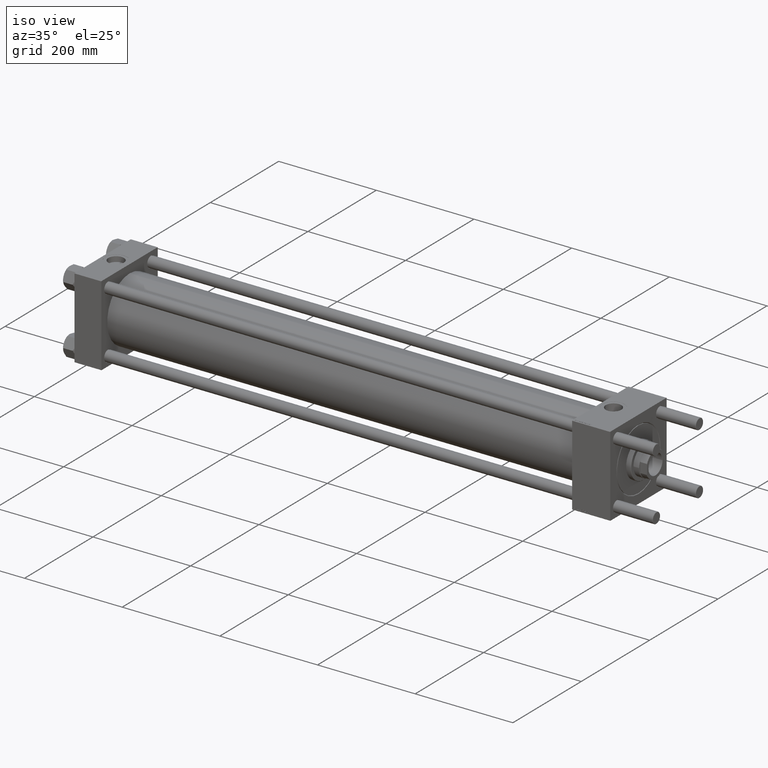
[diagram: clean part render]
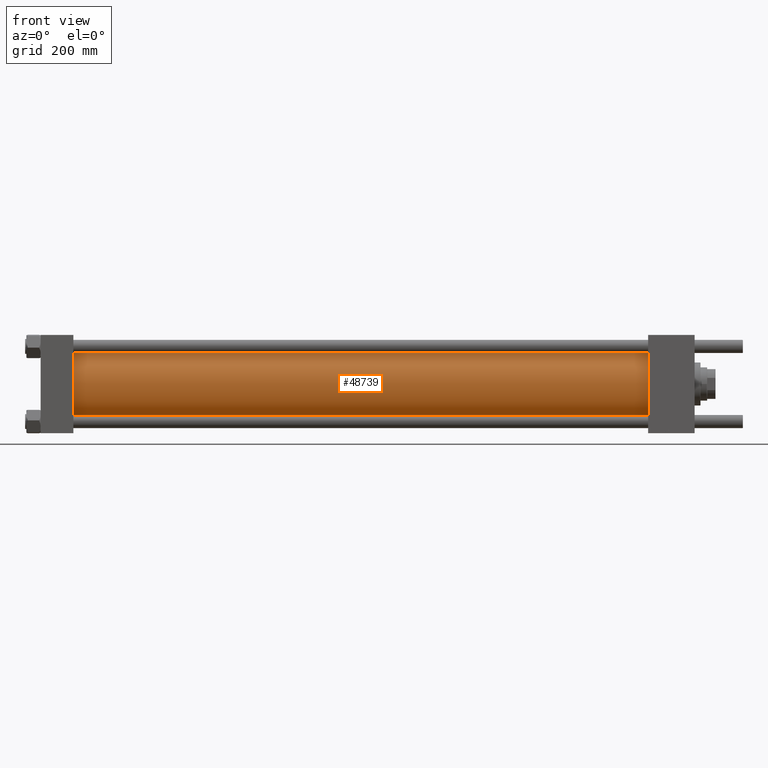
[diagram: tour spotlight — one face highlighted and labeled with its STEP entity id]
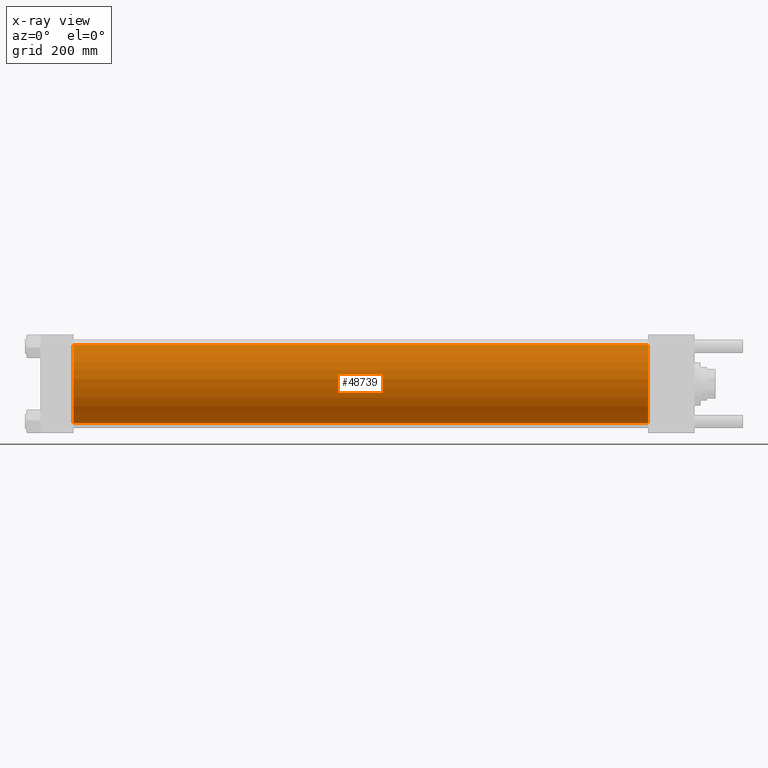
[diagram: x-ray of the same camera — body ghosted, this tour face saturated]
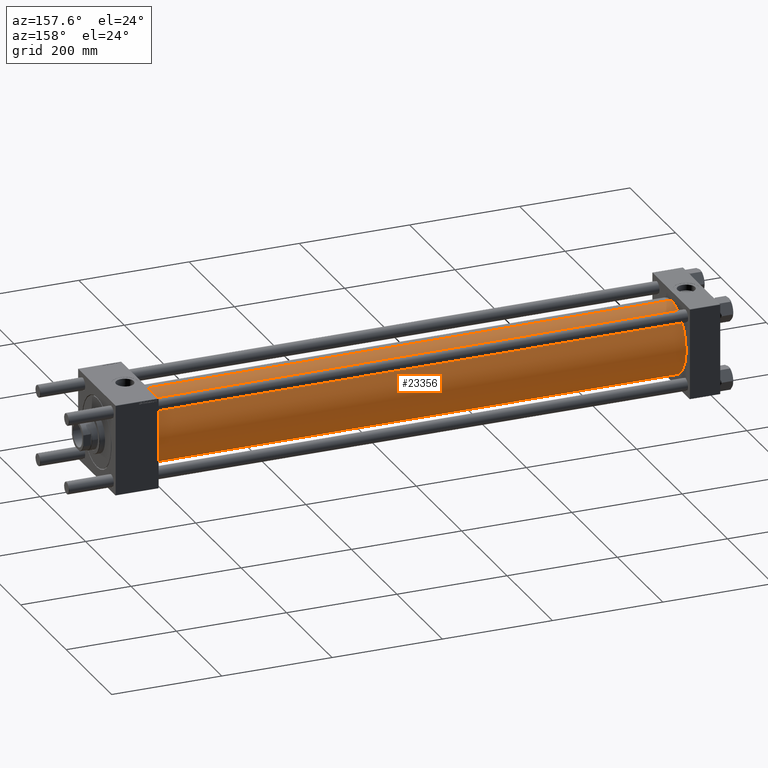
[diagram: tour spotlight — one face highlighted and labeled with its STEP entity id]
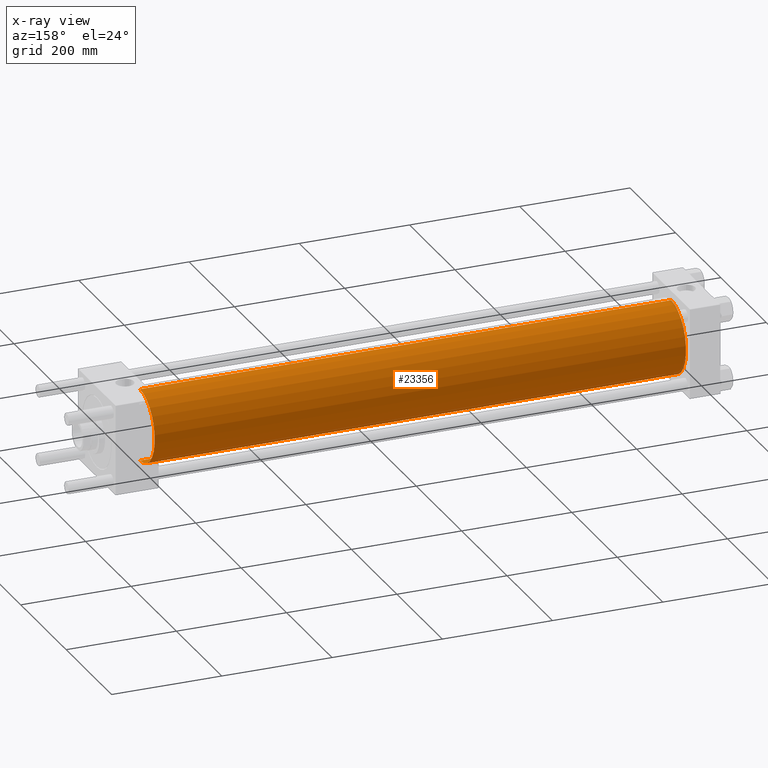
[diagram: x-ray of the same camera — body ghosted, this tour face saturated]
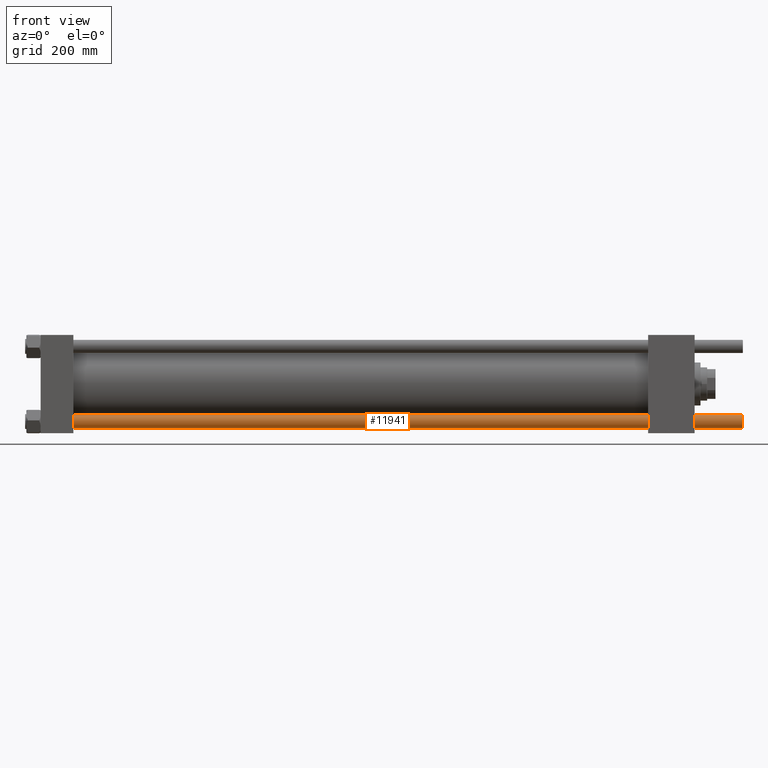
[diagram: tour spotlight — one face highlighted and labeled with its STEP entity id]
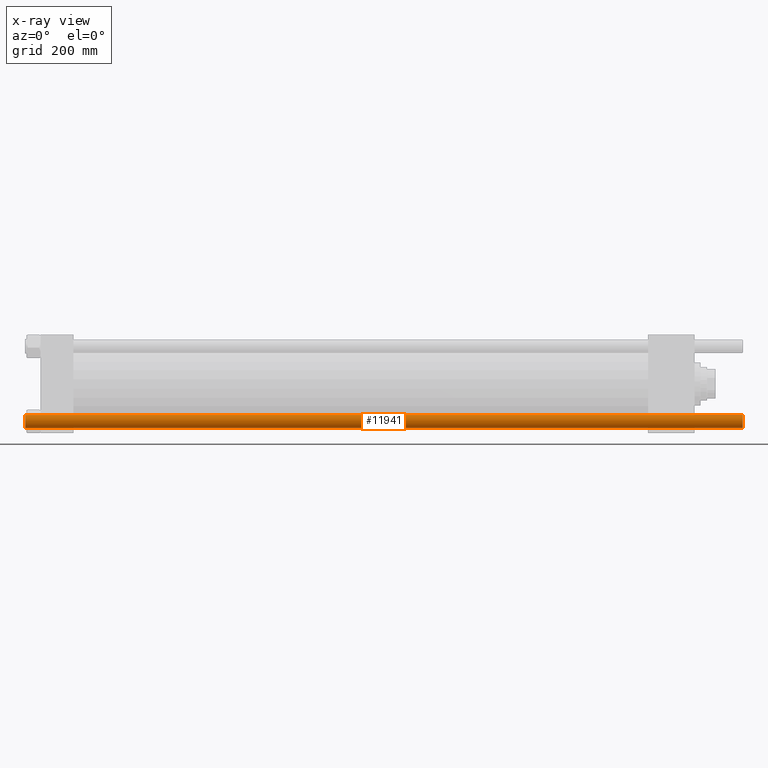
[diagram: x-ray of the same camera — body ghosted, this tour face saturated]
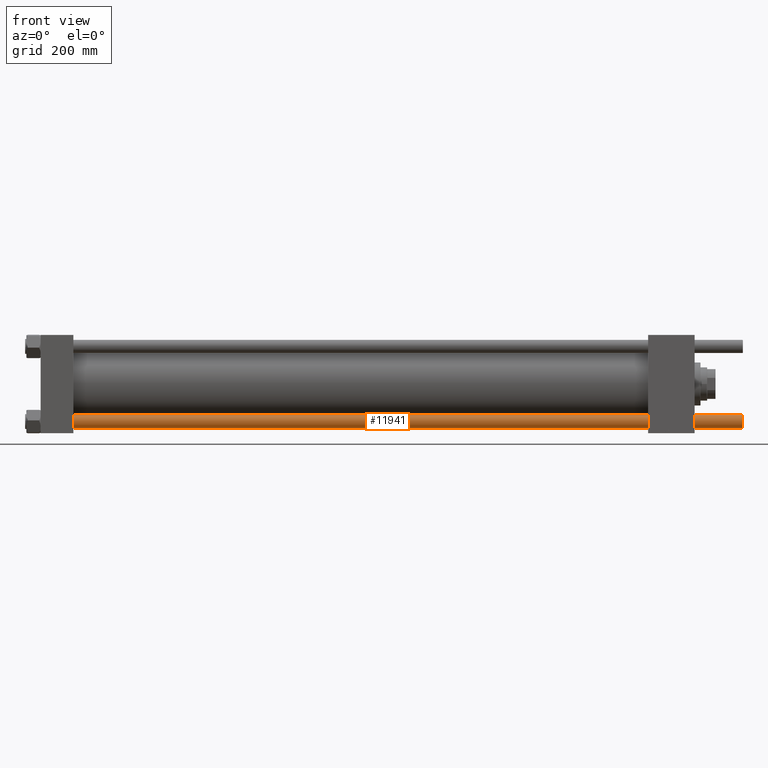
[diagram: tour spotlight — one face highlighted and labeled with its STEP entity id]
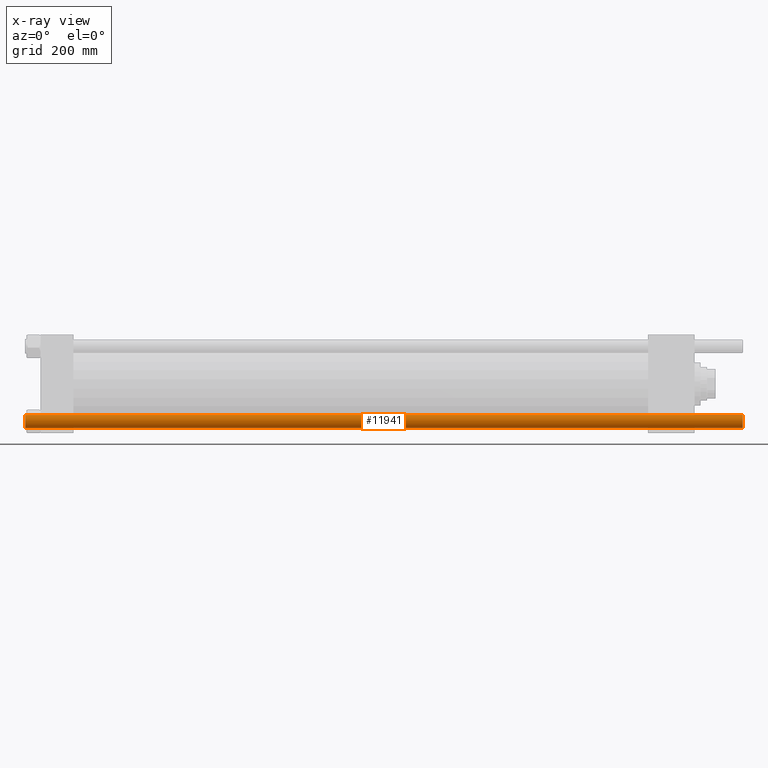
[diagram: x-ray of the same camera — body ghosted, this tour face saturated]
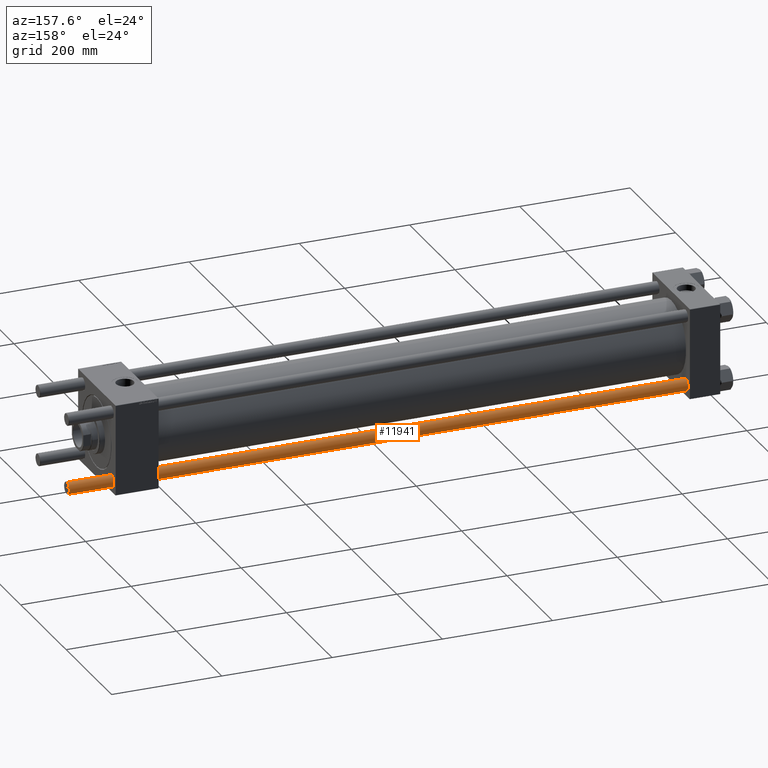
[diagram: tour spotlight — one face highlighted and labeled with its STEP entity id]
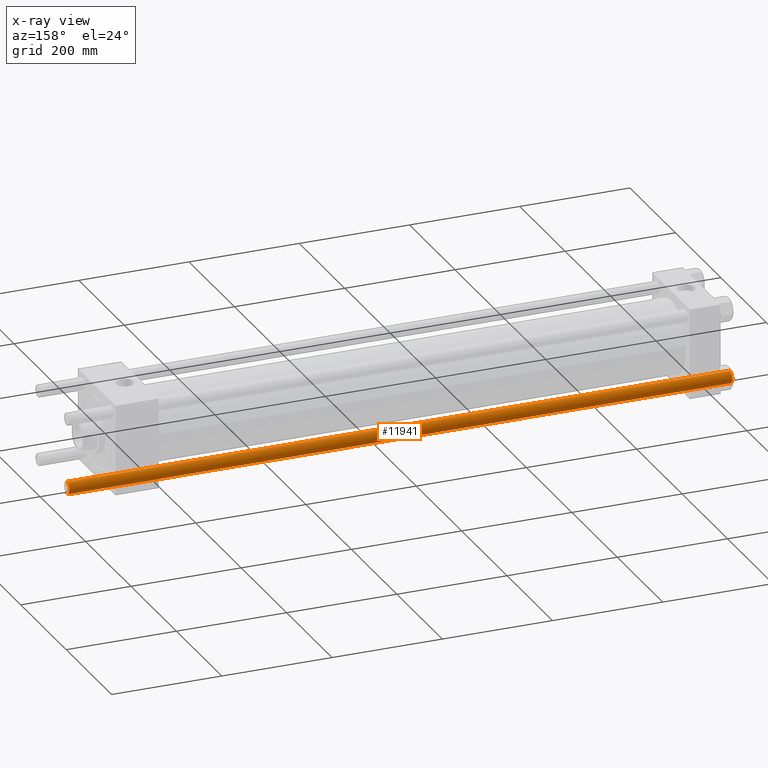
[diagram: x-ray of the same camera — body ghosted, this tour face saturated]
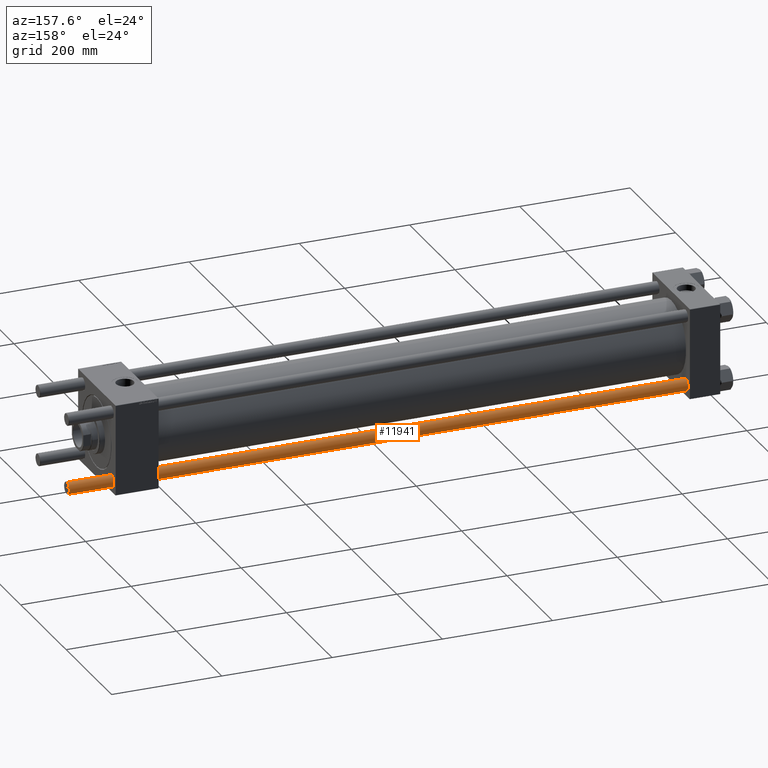
[diagram: tour spotlight — one face highlighted and labeled with its STEP entity id]
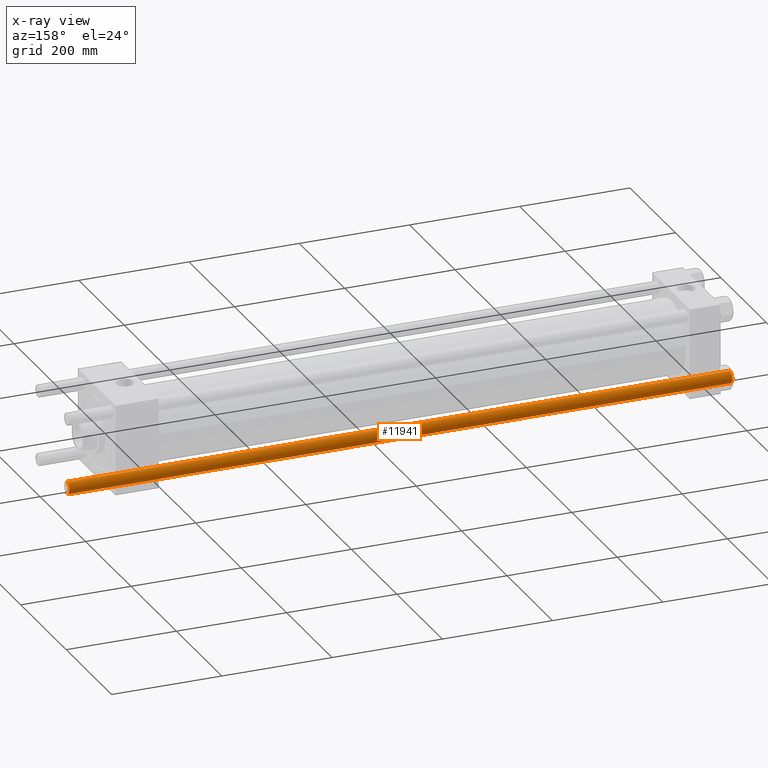
[diagram: x-ray of the same camera — body ghosted, this tour face saturated]
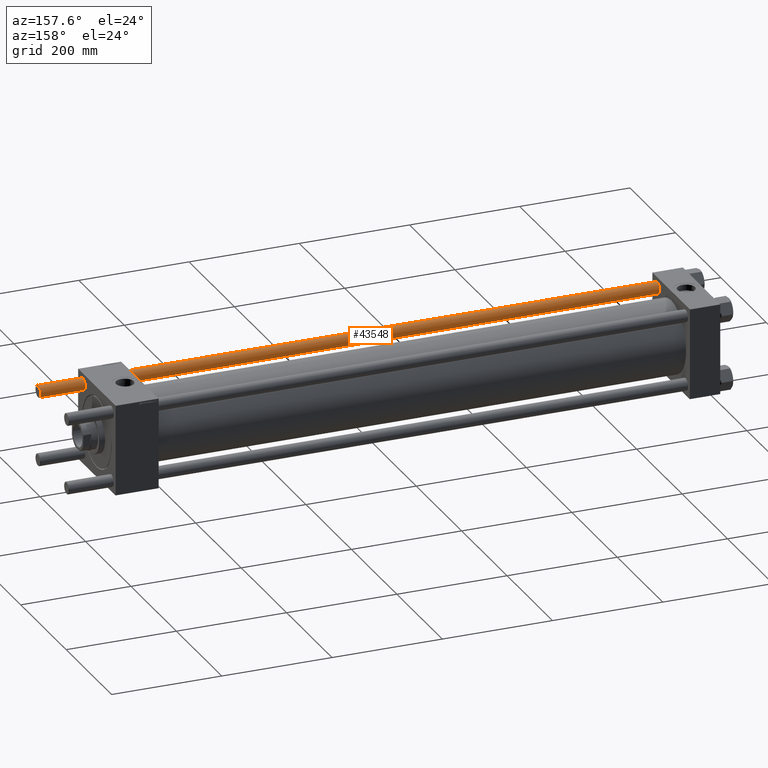
[diagram: tour spotlight — one face highlighted and labeled with its STEP entity id]
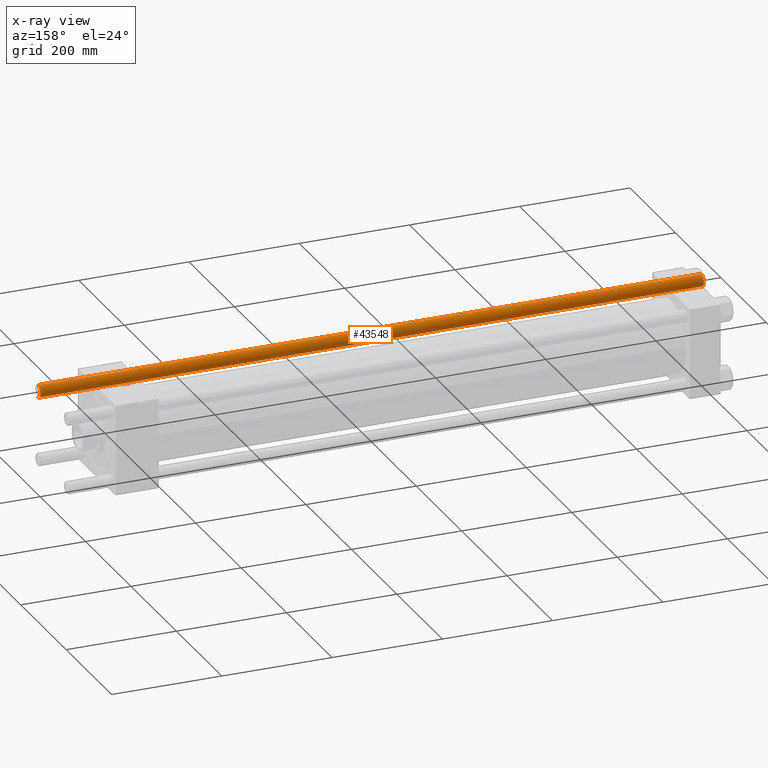
[diagram: x-ray of the same camera — body ghosted, this tour face saturated]
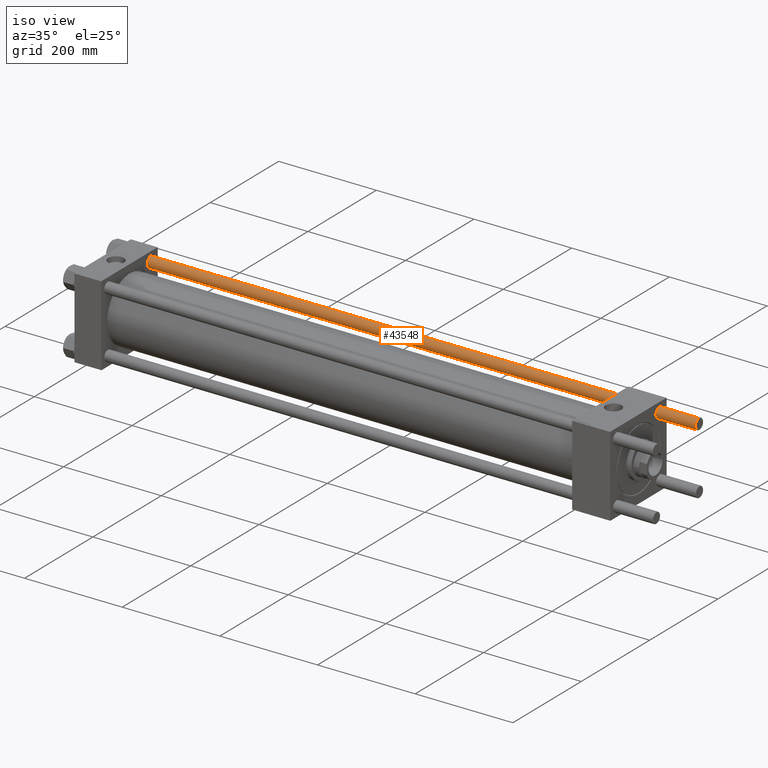
[diagram: tour spotlight — one face highlighted and labeled with its STEP entity id]
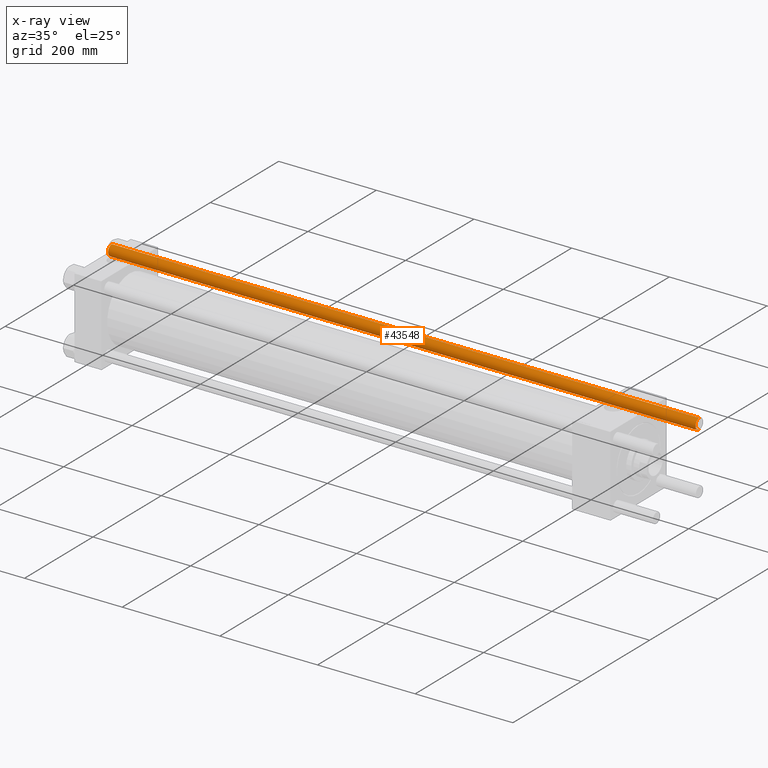
[diagram: x-ray of the same camera — body ghosted, this tour face saturated]
A machine part: a face-by-face anatomy tour. The part has 1206 B-rep faces; the first image is the clean iso view, then the 8 largest visible faces are spotlighted one at a time (largest first), each with its STEP entity span.

Face 1 — front view, entity #48739. An x-ray twin of the same camera follows (body ghosted, this face saturated) — the face is partly hidden behind the body. In plain terms, the highlighted cylindrical surface (partial cylindrical patch) has radius 65.5 mm, axis along (-1, -0, -0).
Definition (entity closure, byte-faithful):
#791 = AXIS2_PLACEMENT_3D ( 'NONE', #19179, #49839, #23236 ) ;
#2906 = EDGE_CURVE ( 'NONE', #40446, #53445, #38547, .T. ) ;
#3774 = CIRCLE ( 'NONE', #16708, 65.50000000000001421 ) ;
#3856 = CARTESIAN_POINT ( 'NONE',  ( 1018.999999999999886, 5.419351320449954973E-15, -65.50000000000001421 ) ) ;
#6941 = DIRECTION ( 'NONE',  ( 0.000000000000000000, 0.000000000000000000, 1.000000000000000000 ) ) ;
#8545 = EDGE_CURVE ( 'NONE', #53445, #20451, #32205, .T. ) ;
#10756 = CARTESIAN_POINT ( 'NONE',  ( 1018.999999999999886, -2.602085213965210642E-15, 65.50000000000001421 ) ) ;
#11408 = EDGE_CURVE ( 'NONE', #40446, #51547, #3774, .T. ) ;
#12261 = VECTOR ( 'NONE', #13462, 1000.000000000000000 ) ;
#13370 = EDGE_LOOP ( 'NONE', ( #43881, #36706, #31284, #14381 ) ) ;
#13462 = DIRECTION ( 'NONE',  ( -1.000000000000000000, -0.000000000000000000, -0.000000000000000000 ) ) ;
#14101 = CARTESIAN_POINT ( 'NONE',  ( 1018.999999999999886, -2.602085213965210642E-15, 0.000000000000000000 ) ) ;
#14381 = ORIENTED_EDGE ( 'NONE', *, *, #8545, .T. ) ;
#16708 = AXIS2_PLACEMENT_3D ( 'NONE', #14101, #53472, #44775 ) ;
#18122 = CARTESIAN_POINT ( 'NONE',  ( 1018.999999999999886, -2.602085213965210642E-15, 65.50000000000001421 ) ) ;
#19179 = CARTESIAN_POINT ( 'NONE',  ( 55.00000000000004974, -2.602085213965210642E-15, 0.000000000000000000 ) ) ;
#20451 = VERTEX_POINT ( 'NONE', #28806 ) ;
#20591 = CARTESIAN_POINT ( 'NONE',  ( 55.00000000000004974, -2.602085213965210642E-15, 65.50000000000001421 ) ) ;
#22151 = LINE ( 'NONE', #40658, #12261 ) ;
#23236 = DIRECTION ( 'NONE',  ( 0.000000000000000000, 0.000000000000000000, 1.000000000000000000 ) ) ;
#28806 = CARTESIAN_POINT ( 'NONE',  ( 55.00000000000004974, 5.419351320449954973E-15, -65.50000000000001421 ) ) ;
#31284 = ORIENTED_EDGE ( 'NONE', *, *, #2906, .T. ) ;
#32177 = CARTESIAN_POINT ( 'NONE',  ( 1018.999999999999886, -2.602085213965210642E-15, 0.000000000000000000 ) ) ;
#32205 = CIRCLE ( 'NONE', #791, 65.50000000000001421 ) ;
#36706 = ORIENTED_EDGE ( 'NONE', *, *, #11408, .F. ) ;
#38547 = LINE ( 'NONE', #10756, #42978 ) ;
#40446 = VERTEX_POINT ( 'NONE', #18122 ) ;
#40658 = CARTESIAN_POINT ( 'NONE',  ( 1018.999999999999886, 5.419351320449954973E-15, -65.50000000000001421 ) ) ;
#40792 = AXIS2_PLACEMENT_3D ( 'NONE', #32177, #45738, #6941 ) ;
#42002 = DIRECTION ( 'NONE',  ( -1.000000000000000000, -0.000000000000000000, -0.000000000000000000 ) ) ;
#42978 = VECTOR ( 'NONE', #42002, 1000.000000000000000 ) ;
#43881 = ORIENTED_EDGE ( 'NONE', *, *, #57221, .F. ) ;
#44775 = DIRECTION ( 'NONE',  ( 0.000000000000000000, 0.000000000000000000, -1.000000000000000000 ) ) ;
#45453 = FACE_OUTER_BOUND ( 'NONE', #13370, .T. ) ;
#45738 = DIRECTION ( 'NONE',  ( -1.000000000000000000, -0.000000000000000000, -0.000000000000000000 ) ) ;
#48739 = ADVANCED_FACE ( 'NONE', ( #45453 ), #50921, .T. ) ;
#49839 = DIRECTION ( 'NONE',  ( 1.000000000000000000, -0.000000000000000000, -0.000000000000000000 ) ) ;
#50921 = CYLINDRICAL_SURFACE ( 'NONE', #40792, 65.50000000000001421 ) ;
#51547 = VERTEX_POINT ( 'NONE', #3856 ) ;
#53445 = VERTEX_POINT ( 'NONE', #20591 ) ;
#53472 = DIRECTION ( 'NONE',  ( 1.000000000000000000, 0.000000000000000000, 0.000000000000000000 ) ) ;
#57221 = EDGE_CURVE ( 'NONE', #51547, #20451, #22151, .T. ) ;

Face 2 — auxiliary view, entity #23356. An x-ray twin of the same camera follows (body ghosted, this face saturated) — the face is partly hidden behind the body. In plain terms, the highlighted cylindrical surface (partial cylindrical patch) has radius 65.5 mm, axis along (-1, -0, -0).
Definition (entity closure, byte-faithful):
#1608 = ORIENTED_EDGE ( 'NONE', *, *, #2906, .F. ) ;
#2906 = EDGE_CURVE ( 'NONE', #40446, #53445, #38547, .T. ) ;
#3498 = ORIENTED_EDGE ( 'NONE', *, *, #26697, .T. ) ;
#3856 = CARTESIAN_POINT ( 'NONE',  ( 1018.999999999999886, 5.419351320449954973E-15, -65.50000000000001421 ) ) ;
#4608 = EDGE_LOOP ( 'NONE', ( #25687, #31192, #3498, #1608 ) ) ;
#7843 = DIRECTION ( 'NONE',  ( 1.000000000000000000, -0.000000000000000000, -0.000000000000000000 ) ) ;
#9402 = CIRCLE ( 'NONE', #32555, 65.50000000000001421 ) ;
#10756 = CARTESIAN_POINT ( 'NONE',  ( 1018.999999999999886, -2.602085213965210642E-15, 65.50000000000001421 ) ) ;
#12261 = VECTOR ( 'NONE', #13462, 1000.000000000000000 ) ;
#13462 = DIRECTION ( 'NONE',  ( -1.000000000000000000, -0.000000000000000000, -0.000000000000000000 ) ) ;
#17803 = CARTESIAN_POINT ( 'NONE',  ( 1018.999999999999886, -2.602085213965210642E-15, 0.000000000000000000 ) ) ;
#18122 = CARTESIAN_POINT ( 'NONE',  ( 1018.999999999999886, -2.602085213965210642E-15, 65.50000000000001421 ) ) ;
#20451 = VERTEX_POINT ( 'NONE', #28806 ) ;
#20591 = CARTESIAN_POINT ( 'NONE',  ( 55.00000000000004974, -2.602085213965210642E-15, 65.50000000000001421 ) ) ;
#21874 = FACE_OUTER_BOUND ( 'NONE', #4608, .T. ) ;
#22151 = LINE ( 'NONE', #40658, #12261 ) ;
#23356 = ADVANCED_FACE ( 'NONE', ( #21874 ), #39240, .T. ) ;
#25342 = CIRCLE ( 'NONE', #46577, 65.50000000000001421 ) ;
#25687 = ORIENTED_EDGE ( 'NONE', *, *, #55498, .F. ) ;
#26697 = EDGE_CURVE ( 'NONE', #20451, #53445, #25342, .T. ) ;
#28806 = CARTESIAN_POINT ( 'NONE',  ( 55.00000000000004974, 5.419351320449954973E-15, -65.50000000000001421 ) ) ;
#30539 = DIRECTION ( 'NONE',  ( 0.000000000000000000, 0.000000000000000000, -1.000000000000000000 ) ) ;
#31192 = ORIENTED_EDGE ( 'NONE', *, *, #57221, .T. ) ;
#32555 = AXIS2_PLACEMENT_3D ( 'NONE', #17803, #49314, #30539 ) ;
#33331 = DIRECTION ( 'NONE',  ( 0.000000000000000000, 0.000000000000000000, 1.000000000000000000 ) ) ;
#33519 = AXIS2_PLACEMENT_3D ( 'NONE', #57178, #42706, #34615 ) ;
#34615 = DIRECTION ( 'NONE',  ( 0.000000000000000000, 0.000000000000000000, 1.000000000000000000 ) ) ;
#38547 = LINE ( 'NONE', #10756, #42978 ) ;
#39240 = CYLINDRICAL_SURFACE ( 'NONE', #33519, 65.50000000000001421 ) ;
#40446 = VERTEX_POINT ( 'NONE', #18122 ) ;
#40658 = CARTESIAN_POINT ( 'NONE',  ( 1018.999999999999886, 5.419351320449954973E-15, -65.50000000000001421 ) ) ;
#42002 = DIRECTION ( 'NONE',  ( -1.000000000000000000, -0.000000000000000000, -0.000000000000000000 ) ) ;
#42580 = CARTESIAN_POINT ( 'NONE',  ( 55.00000000000004974, -2.602085213965210642E-15, 0.000000000000000000 ) ) ;
#42706 = DIRECTION ( 'NONE',  ( -1.000000000000000000, -0.000000000000000000, -0.000000000000000000 ) ) ;
#42978 = VECTOR ( 'NONE', #42002, 1000.000000000000000 ) ;
#46577 = AXIS2_PLACEMENT_3D ( 'NONE', #42580, #7843, #33331 ) ;
#49314 = DIRECTION ( 'NONE',  ( 1.000000000000000000, 0.000000000000000000, 0.000000000000000000 ) ) ;
#51547 = VERTEX_POINT ( 'NONE', #3856 ) ;
#53445 = VERTEX_POINT ( 'NONE', #20591 ) ;
#55498 = EDGE_CURVE ( 'NONE', #51547, #40446, #9402, .T. ) ;
#57178 = CARTESIAN_POINT ( 'NONE',  ( 1018.999999999999886, -2.602085213965210642E-15, 0.000000000000000000 ) ) ;
#57221 = EDGE_CURVE ( 'NONE', #51547, #20451, #22151, .T. ) ;

Face 3 — front view, entity #11941. An x-ray twin of the same camera follows (body ghosted, this face saturated) — the face is partly hidden behind the body. In plain terms, the highlighted cylindrical surface (edge-blend (fillet) strip) has radius 11 mm, axis along (-1, 0, -0).
Definition (entity closure, byte-faithful):
#1903 = AXIS2_PLACEMENT_3D ( 'NONE', #10251, #23297, #23861 ) ;
#5611 = CARTESIAN_POINT ( 'NONE',  ( 0.000000000000000000, 0.000000000000000000, 1203.499999999999545 ) ) ;
#5757 = DIRECTION ( 'NONE',  ( -0.000000000000000000, -0.000000000000000000, -1.000000000000000000 ) ) ;
#6074 = VERTEX_POINT ( 'NONE', #12900 ) ;
#7035 = DIRECTION ( 'NONE',  ( 1.000000000000000000, 0.000000000000000000, 0.000000000000000000 ) ) ;
#9520 = CARTESIAN_POINT ( 'NONE',  ( 11.00000000000000000, 1.347111479062088405E-15, 1204.000000000000000 ) ) ;
#10183 = ORIENTED_EDGE ( 'NONE', *, *, #50718, .T. ) ;
#10251 = CARTESIAN_POINT ( 'NONE',  ( 0.000000000000000000, 0.000000000000000000, 1204.000000000000000 ) ) ;
#11384 = ORIENTED_EDGE ( 'NONE', *, *, #37837, .F. ) ;
#11941 = ADVANCED_FACE ( 'NONE', ( #41782 ), #45834, .T. ) ;
#12900 = CARTESIAN_POINT ( 'NONE',  ( -11.00000000000000000, 0.000000000000000000, 0.5000000000001669775 ) ) ;
#13270 = EDGE_LOOP ( 'NONE', ( #46754, #33000, #10183, #11384 ) ) ;
#19411 = AXIS2_PLACEMENT_3D ( 'NONE', #5611, #23281, #49878 ) ;
#23281 = DIRECTION ( 'NONE',  ( 0.000000000000000000, 0.000000000000000000, -1.000000000000000000 ) ) ;
#23297 = DIRECTION ( 'NONE',  ( -0.000000000000000000, -0.000000000000000000, -1.000000000000000000 ) ) ;
#23861 = DIRECTION ( 'NONE',  ( -1.000000000000000000, 0.000000000000000000, 0.000000000000000000 ) ) ;
#26490 = VERTEX_POINT ( 'NONE', #47033 ) ;
#26971 = CARTESIAN_POINT ( 'NONE',  ( 11.00000000000000000, 1.347111479062088405E-15, 1203.499999999999545 ) ) ;
#27453 = VERTEX_POINT ( 'NONE', #31657 ) ;
#29335 = DIRECTION ( 'NONE',  ( -0.000000000000000000, -0.000000000000000000, 1.000000000000000000 ) ) ;
#31657 = CARTESIAN_POINT ( 'NONE',  ( 11.00000000000000000, 1.347111479062088405E-15, 0.5000000000001669775 ) ) ;
#33000 = ORIENTED_EDGE ( 'NONE', *, *, #33489, .T. ) ;
#33157 = VERTEX_POINT ( 'NONE', #26971 ) ;
#33489 = EDGE_CURVE ( 'NONE', #33157, #27453, #36451, .T. ) ;
#35197 = AXIS2_PLACEMENT_3D ( 'NONE', #51014, #29335, #7035 ) ;
#36451 = LINE ( 'NONE', #9520, #55077 ) ;
#37837 = EDGE_CURVE ( 'NONE', #26490, #6074, #52085, .T. ) ;
#41782 = FACE_OUTER_BOUND ( 'NONE', #13270, .T. ) ;
#45834 = CYLINDRICAL_SURFACE ( 'NONE', #1903, 11.00000000000000000 ) ;
#46754 = ORIENTED_EDGE ( 'NONE', *, *, #49644, .T. ) ;
#47033 = CARTESIAN_POINT ( 'NONE',  ( -11.00000000000000000, 0.000000000000000000, 1203.499999999999545 ) ) ;
#48017 = DIRECTION ( 'NONE',  ( -0.000000000000000000, -0.000000000000000000, -1.000000000000000000 ) ) ;
#49644 = EDGE_CURVE ( 'NONE', #26490, #33157, #52718, .T. ) ;
#49878 = DIRECTION ( 'NONE',  ( 1.000000000000000000, 0.000000000000000000, 0.000000000000000000 ) ) ;
#49967 = CIRCLE ( 'NONE', #35197, 11.00000000000000000 ) ;
#50718 = EDGE_CURVE ( 'NONE', #27453, #6074, #49967, .T. ) ;
#51014 = CARTESIAN_POINT ( 'NONE',  ( 0.000000000000000000, 0.000000000000000000, 0.5000000000001669775 ) ) ;
#51791 = CARTESIAN_POINT ( 'NONE',  ( -11.00000000000000000, 0.000000000000000000, 1204.000000000000000 ) ) ;
#52085 = LINE ( 'NONE', #51791, #53230 ) ;
#52718 = CIRCLE ( 'NONE', #19411, 11.00000000000000000 ) ;
#53230 = VECTOR ( 'NONE', #48017, 1000.000000000000000 ) ;
#55077 = VECTOR ( 'NONE', #5757, 1000.000000000000000 ) ;

Face 4 — front view, entity #11941. An x-ray twin of the same camera follows (body ghosted, this face saturated) — the face is partly hidden behind the body. In plain terms, the highlighted cylindrical surface (edge-blend (fillet) strip) has radius 11 mm, axis along (1, 0, 0).
Definition (entity closure, byte-faithful):
#1903 = AXIS2_PLACEMENT_3D ( 'NONE', #10251, #23297, #23861 ) ;
#5611 = CARTESIAN_POINT ( 'NONE',  ( 0.000000000000000000, 0.000000000000000000, 1203.499999999999545 ) ) ;
#5757 = DIRECTION ( 'NONE',  ( -0.000000000000000000, -0.000000000000000000, -1.000000000000000000 ) ) ;
#6074 = VERTEX_POINT ( 'NONE', #12900 ) ;
#7035 = DIRECTION ( 'NONE',  ( 1.000000000000000000, 0.000000000000000000, 0.000000000000000000 ) ) ;
#9520 = CARTESIAN_POINT ( 'NONE',  ( 11.00000000000000000, 1.347111479062088405E-15, 1204.000000000000000 ) ) ;
#10183 = ORIENTED_EDGE ( 'NONE', *, *, #50718, .T. ) ;
#10251 = CARTESIAN_POINT ( 'NONE',  ( 0.000000000000000000, 0.000000000000000000, 1204.000000000000000 ) ) ;
#11384 = ORIENTED_EDGE ( 'NONE', *, *, #37837, .F. ) ;
#11941 = ADVANCED_FACE ( 'NONE', ( #41782 ), #45834, .T. ) ;
#12900 = CARTESIAN_POINT ( 'NONE',  ( -11.00000000000000000, 0.000000000000000000, 0.5000000000001669775 ) ) ;
#13270 = EDGE_LOOP ( 'NONE', ( #46754, #33000, #10183, #11384 ) ) ;
#19411 = AXIS2_PLACEMENT_3D ( 'NONE', #5611, #23281, #49878 ) ;
#23281 = DIRECTION ( 'NONE',  ( 0.000000000000000000, 0.000000000000000000, -1.000000000000000000 ) ) ;
#23297 = DIRECTION ( 'NONE',  ( -0.000000000000000000, -0.000000000000000000, -1.000000000000000000 ) ) ;
#23861 = DIRECTION ( 'NONE',  ( -1.000000000000000000, 0.000000000000000000, 0.000000000000000000 ) ) ;
#26490 = VERTEX_POINT ( 'NONE', #47033 ) ;
#26971 = CARTESIAN_POINT ( 'NONE',  ( 11.00000000000000000, 1.347111479062088405E-15, 1203.499999999999545 ) ) ;
#27453 = VERTEX_POINT ( 'NONE', #31657 ) ;
#29335 = DIRECTION ( 'NONE',  ( -0.000000000000000000, -0.000000000000000000, 1.000000000000000000 ) ) ;
#31657 = CARTESIAN_POINT ( 'NONE',  ( 11.00000000000000000, 1.347111479062088405E-15, 0.5000000000001669775 ) ) ;
#33000 = ORIENTED_EDGE ( 'NONE', *, *, #33489, .T. ) ;
#33157 = VERTEX_POINT ( 'NONE', #26971 ) ;
#33489 = EDGE_CURVE ( 'NONE', #33157, #27453, #36451, .T. ) ;
#35197 = AXIS2_PLACEMENT_3D ( 'NONE', #51014, #29335, #7035 ) ;
#36451 = LINE ( 'NONE', #9520, #55077 ) ;
#37837 = EDGE_CURVE ( 'NONE', #26490, #6074, #52085, .T. ) ;
#41782 = FACE_OUTER_BOUND ( 'NONE', #13270, .T. ) ;
#45834 = CYLINDRICAL_SURFACE ( 'NONE', #1903, 11.00000000000000000 ) ;
#46754 = ORIENTED_EDGE ( 'NONE', *, *, #49644, .T. ) ;
#47033 = CARTESIAN_POINT ( 'NONE',  ( -11.00000000000000000, 0.000000000000000000, 1203.499999999999545 ) ) ;
#48017 = DIRECTION ( 'NONE',  ( -0.000000000000000000, -0.000000000000000000, -1.000000000000000000 ) ) ;
#49644 = EDGE_CURVE ( 'NONE', #26490, #33157, #52718, .T. ) ;
#49878 = DIRECTION ( 'NONE',  ( 1.000000000000000000, 0.000000000000000000, 0.000000000000000000 ) ) ;
#49967 = CIRCLE ( 'NONE', #35197, 11.00000000000000000 ) ;
#50718 = EDGE_CURVE ( 'NONE', #27453, #6074, #49967, .T. ) ;
#51014 = CARTESIAN_POINT ( 'NONE',  ( 0.000000000000000000, 0.000000000000000000, 0.5000000000001669775 ) ) ;
#51791 = CARTESIAN_POINT ( 'NONE',  ( -11.00000000000000000, 0.000000000000000000, 1204.000000000000000 ) ) ;
#52085 = LINE ( 'NONE', #51791, #53230 ) ;
#52718 = CIRCLE ( 'NONE', #19411, 11.00000000000000000 ) ;
#53230 = VECTOR ( 'NONE', #48017, 1000.000000000000000 ) ;
#55077 = VECTOR ( 'NONE', #5757, 1000.000000000000000 ) ;

Face 5 — auxiliary view, entity #11941. An x-ray twin of the same camera follows (body ghosted, this face saturated) — the face is partly hidden behind the body. In plain terms, the highlighted cylindrical surface (edge-blend (fillet) strip) has radius 11 mm, axis along (1, -0, -0).
Definition (entity closure, byte-faithful):
#1903 = AXIS2_PLACEMENT_3D ( 'NONE', #10251, #23297, #23861 ) ;
#5611 = CARTESIAN_POINT ( 'NONE',  ( 0.000000000000000000, 0.000000000000000000, 1203.499999999999545 ) ) ;
#5757 = DIRECTION ( 'NONE',  ( -0.000000000000000000, -0.000000000000000000, -1.000000000000000000 ) ) ;
#6074 = VERTEX_POINT ( 'NONE', #12900 ) ;
#7035 = DIRECTION ( 'NONE',  ( 1.000000000000000000, 0.000000000000000000, 0.000000000000000000 ) ) ;
#9520 = CARTESIAN_POINT ( 'NONE',  ( 11.00000000000000000, 1.347111479062088405E-15, 1204.000000000000000 ) ) ;
#10183 = ORIENTED_EDGE ( 'NONE', *, *, #50718, .T. ) ;
#10251 = CARTESIAN_POINT ( 'NONE',  ( 0.000000000000000000, 0.000000000000000000, 1204.000000000000000 ) ) ;
#11384 = ORIENTED_EDGE ( 'NONE', *, *, #37837, .F. ) ;
#11941 = ADVANCED_FACE ( 'NONE', ( #41782 ), #45834, .T. ) ;
#12900 = CARTESIAN_POINT ( 'NONE',  ( -11.00000000000000000, 0.000000000000000000, 0.5000000000001669775 ) ) ;
#13270 = EDGE_LOOP ( 'NONE', ( #46754, #33000, #10183, #11384 ) ) ;
#19411 = AXIS2_PLACEMENT_3D ( 'NONE', #5611, #23281, #49878 ) ;
#23281 = DIRECTION ( 'NONE',  ( 0.000000000000000000, 0.000000000000000000, -1.000000000000000000 ) ) ;
#23297 = DIRECTION ( 'NONE',  ( -0.000000000000000000, -0.000000000000000000, -1.000000000000000000 ) ) ;
#23861 = DIRECTION ( 'NONE',  ( -1.000000000000000000, 0.000000000000000000, 0.000000000000000000 ) ) ;
#26490 = VERTEX_POINT ( 'NONE', #47033 ) ;
#26971 = CARTESIAN_POINT ( 'NONE',  ( 11.00000000000000000, 1.347111479062088405E-15, 1203.499999999999545 ) ) ;
#27453 = VERTEX_POINT ( 'NONE', #31657 ) ;
#29335 = DIRECTION ( 'NONE',  ( -0.000000000000000000, -0.000000000000000000, 1.000000000000000000 ) ) ;
#31657 = CARTESIAN_POINT ( 'NONE',  ( 11.00000000000000000, 1.347111479062088405E-15, 0.5000000000001669775 ) ) ;
#33000 = ORIENTED_EDGE ( 'NONE', *, *, #33489, .T. ) ;
#33157 = VERTEX_POINT ( 'NONE', #26971 ) ;
#33489 = EDGE_CURVE ( 'NONE', #33157, #27453, #36451, .T. ) ;
#35197 = AXIS2_PLACEMENT_3D ( 'NONE', #51014, #29335, #7035 ) ;
#36451 = LINE ( 'NONE', #9520, #55077 ) ;
#37837 = EDGE_CURVE ( 'NONE', #26490, #6074, #52085, .T. ) ;
#41782 = FACE_OUTER_BOUND ( 'NONE', #13270, .T. ) ;
#45834 = CYLINDRICAL_SURFACE ( 'NONE', #1903, 11.00000000000000000 ) ;
#46754 = ORIENTED_EDGE ( 'NONE', *, *, #49644, .T. ) ;
#47033 = CARTESIAN_POINT ( 'NONE',  ( -11.00000000000000000, 0.000000000000000000, 1203.499999999999545 ) ) ;
#48017 = DIRECTION ( 'NONE',  ( -0.000000000000000000, -0.000000000000000000, -1.000000000000000000 ) ) ;
#49644 = EDGE_CURVE ( 'NONE', #26490, #33157, #52718, .T. ) ;
#49878 = DIRECTION ( 'NONE',  ( 1.000000000000000000, 0.000000000000000000, 0.000000000000000000 ) ) ;
#49967 = CIRCLE ( 'NONE', #35197, 11.00000000000000000 ) ;
#50718 = EDGE_CURVE ( 'NONE', #27453, #6074, #49967, .T. ) ;
#51014 = CARTESIAN_POINT ( 'NONE',  ( 0.000000000000000000, 0.000000000000000000, 0.5000000000001669775 ) ) ;
#51791 = CARTESIAN_POINT ( 'NONE',  ( -11.00000000000000000, 0.000000000000000000, 1204.000000000000000 ) ) ;
#52085 = LINE ( 'NONE', #51791, #53230 ) ;
#52718 = CIRCLE ( 'NONE', #19411, 11.00000000000000000 ) ;
#53230 = VECTOR ( 'NONE', #48017, 1000.000000000000000 ) ;
#55077 = VECTOR ( 'NONE', #5757, 1000.000000000000000 ) ;

Face 6 — auxiliary view, entity #11941. An x-ray twin of the same camera follows (body ghosted, this face saturated) — the face is partly hidden behind the body. In plain terms, the highlighted cylindrical surface (edge-blend (fillet) strip) has radius 11 mm, axis along (-1, -0, 0).
Definition (entity closure, byte-faithful):
#1903 = AXIS2_PLACEMENT_3D ( 'NONE', #10251, #23297, #23861 ) ;
#5611 = CARTESIAN_POINT ( 'NONE',  ( 0.000000000000000000, 0.000000000000000000, 1203.499999999999545 ) ) ;
#5757 = DIRECTION ( 'NONE',  ( -0.000000000000000000, -0.000000000000000000, -1.000000000000000000 ) ) ;
#6074 = VERTEX_POINT ( 'NONE', #12900 ) ;
#7035 = DIRECTION ( 'NONE',  ( 1.000000000000000000, 0.000000000000000000, 0.000000000000000000 ) ) ;
#9520 = CARTESIAN_POINT ( 'NONE',  ( 11.00000000000000000, 1.347111479062088405E-15, 1204.000000000000000 ) ) ;
#10183 = ORIENTED_EDGE ( 'NONE', *, *, #50718, .T. ) ;
#10251 = CARTESIAN_POINT ( 'NONE',  ( 0.000000000000000000, 0.000000000000000000, 1204.000000000000000 ) ) ;
#11384 = ORIENTED_EDGE ( 'NONE', *, *, #37837, .F. ) ;
#11941 = ADVANCED_FACE ( 'NONE', ( #41782 ), #45834, .T. ) ;
#12900 = CARTESIAN_POINT ( 'NONE',  ( -11.00000000000000000, 0.000000000000000000, 0.5000000000001669775 ) ) ;
#13270 = EDGE_LOOP ( 'NONE', ( #46754, #33000, #10183, #11384 ) ) ;
#19411 = AXIS2_PLACEMENT_3D ( 'NONE', #5611, #23281, #49878 ) ;
#23281 = DIRECTION ( 'NONE',  ( 0.000000000000000000, 0.000000000000000000, -1.000000000000000000 ) ) ;
#23297 = DIRECTION ( 'NONE',  ( -0.000000000000000000, -0.000000000000000000, -1.000000000000000000 ) ) ;
#23861 = DIRECTION ( 'NONE',  ( -1.000000000000000000, 0.000000000000000000, 0.000000000000000000 ) ) ;
#26490 = VERTEX_POINT ( 'NONE', #47033 ) ;
#26971 = CARTESIAN_POINT ( 'NONE',  ( 11.00000000000000000, 1.347111479062088405E-15, 1203.499999999999545 ) ) ;
#27453 = VERTEX_POINT ( 'NONE', #31657 ) ;
#29335 = DIRECTION ( 'NONE',  ( -0.000000000000000000, -0.000000000000000000, 1.000000000000000000 ) ) ;
#31657 = CARTESIAN_POINT ( 'NONE',  ( 11.00000000000000000, 1.347111479062088405E-15, 0.5000000000001669775 ) ) ;
#33000 = ORIENTED_EDGE ( 'NONE', *, *, #33489, .T. ) ;
#33157 = VERTEX_POINT ( 'NONE', #26971 ) ;
#33489 = EDGE_CURVE ( 'NONE', #33157, #27453, #36451, .T. ) ;
#35197 = AXIS2_PLACEMENT_3D ( 'NONE', #51014, #29335, #7035 ) ;
#36451 = LINE ( 'NONE', #9520, #55077 ) ;
#37837 = EDGE_CURVE ( 'NONE', #26490, #6074, #52085, .T. ) ;
#41782 = FACE_OUTER_BOUND ( 'NONE', #13270, .T. ) ;
#45834 = CYLINDRICAL_SURFACE ( 'NONE', #1903, 11.00000000000000000 ) ;
#46754 = ORIENTED_EDGE ( 'NONE', *, *, #49644, .T. ) ;
#47033 = CARTESIAN_POINT ( 'NONE',  ( -11.00000000000000000, 0.000000000000000000, 1203.499999999999545 ) ) ;
#48017 = DIRECTION ( 'NONE',  ( -0.000000000000000000, -0.000000000000000000, -1.000000000000000000 ) ) ;
#49644 = EDGE_CURVE ( 'NONE', #26490, #33157, #52718, .T. ) ;
#49878 = DIRECTION ( 'NONE',  ( 1.000000000000000000, 0.000000000000000000, 0.000000000000000000 ) ) ;
#49967 = CIRCLE ( 'NONE', #35197, 11.00000000000000000 ) ;
#50718 = EDGE_CURVE ( 'NONE', #27453, #6074, #49967, .T. ) ;
#51014 = CARTESIAN_POINT ( 'NONE',  ( 0.000000000000000000, 0.000000000000000000, 0.5000000000001669775 ) ) ;
#51791 = CARTESIAN_POINT ( 'NONE',  ( -11.00000000000000000, 0.000000000000000000, 1204.000000000000000 ) ) ;
#52085 = LINE ( 'NONE', #51791, #53230 ) ;
#52718 = CIRCLE ( 'NONE', #19411, 11.00000000000000000 ) ;
#53230 = VECTOR ( 'NONE', #48017, 1000.000000000000000 ) ;
#55077 = VECTOR ( 'NONE', #5757, 1000.000000000000000 ) ;

Face 7 — auxiliary view, entity #43548. An x-ray twin of the same camera follows (body ghosted, this face saturated) — the face is partly hidden behind the body. In plain terms, the highlighted cylindrical surface (edge-blend (fillet) strip) has radius 11 mm, axis along (-1, 0, -0).
Definition (entity closure, byte-faithful):
#1288 = EDGE_CURVE ( 'NONE', #33157, #26490, #50292, .T. ) ;
#2960 = CYLINDRICAL_SURFACE ( 'NONE', #44124, 11.00000000000000000 ) ;
#4113 = FACE_OUTER_BOUND ( 'NONE', #35522, .T. ) ;
#5757 = DIRECTION ( 'NONE',  ( -0.000000000000000000, -0.000000000000000000, -1.000000000000000000 ) ) ;
#6046 = EDGE_CURVE ( 'NONE', #6074, #27453, #24613, .T. ) ;
#6074 = VERTEX_POINT ( 'NONE', #12900 ) ;
#9520 = CARTESIAN_POINT ( 'NONE',  ( 11.00000000000000000, 1.347111479062088405E-15, 1204.000000000000000 ) ) ;
#12900 = CARTESIAN_POINT ( 'NONE',  ( -11.00000000000000000, 0.000000000000000000, 0.5000000000001669775 ) ) ;
#13047 = ORIENTED_EDGE ( 'NONE', *, *, #1288, .T. ) ;
#18404 = CARTESIAN_POINT ( 'NONE',  ( 0.000000000000000000, 0.000000000000000000, 0.5000000000001669775 ) ) ;
#21490 = DIRECTION ( 'NONE',  ( -1.000000000000000000, 0.000000000000000000, 0.000000000000000000 ) ) ;
#21594 = DIRECTION ( 'NONE',  ( 1.000000000000000000, 0.000000000000000000, 0.000000000000000000 ) ) ;
#24613 = CIRCLE ( 'NONE', #44927, 11.00000000000000000 ) ;
#26490 = VERTEX_POINT ( 'NONE', #47033 ) ;
#26971 = CARTESIAN_POINT ( 'NONE',  ( 11.00000000000000000, 1.347111479062088405E-15, 1203.499999999999545 ) ) ;
#27453 = VERTEX_POINT ( 'NONE', #31657 ) ;
#29598 = DIRECTION ( 'NONE',  ( -0.000000000000000000, -0.000000000000000000, -1.000000000000000000 ) ) ;
#30205 = ORIENTED_EDGE ( 'NONE', *, *, #37837, .T. ) ;
#31657 = CARTESIAN_POINT ( 'NONE',  ( 11.00000000000000000, 1.347111479062088405E-15, 0.5000000000001669775 ) ) ;
#33157 = VERTEX_POINT ( 'NONE', #26971 ) ;
#33489 = EDGE_CURVE ( 'NONE', #33157, #27453, #36451, .T. ) ;
#34799 = DIRECTION ( 'NONE',  ( 0.000000000000000000, 0.000000000000000000, -1.000000000000000000 ) ) ;
#35522 = EDGE_LOOP ( 'NONE', ( #56523, #13047, #30205, #36609 ) ) ;
#36451 = LINE ( 'NONE', #9520, #55077 ) ;
#36609 = ORIENTED_EDGE ( 'NONE', *, *, #6046, .T. ) ;
#37837 = EDGE_CURVE ( 'NONE', #26490, #6074, #52085, .T. ) ;
#41071 = AXIS2_PLACEMENT_3D ( 'NONE', #52724, #34799, #48934 ) ;
#43548 = ADVANCED_FACE ( 'NONE', ( #4113 ), #2960, .T. ) ;
#44124 = AXIS2_PLACEMENT_3D ( 'NONE', #47510, #29598, #21490 ) ;
#44927 = AXIS2_PLACEMENT_3D ( 'NONE', #18404, #49056, #21594 ) ;
#47033 = CARTESIAN_POINT ( 'NONE',  ( -11.00000000000000000, 0.000000000000000000, 1203.499999999999545 ) ) ;
#47510 = CARTESIAN_POINT ( 'NONE',  ( 0.000000000000000000, 0.000000000000000000, 1204.000000000000000 ) ) ;
#48017 = DIRECTION ( 'NONE',  ( -0.000000000000000000, -0.000000000000000000, -1.000000000000000000 ) ) ;
#48934 = DIRECTION ( 'NONE',  ( 1.000000000000000000, 0.000000000000000000, 0.000000000000000000 ) ) ;
#49056 = DIRECTION ( 'NONE',  ( -0.000000000000000000, -0.000000000000000000, 1.000000000000000000 ) ) ;
#50292 = CIRCLE ( 'NONE', #41071, 11.00000000000000000 ) ;
#51791 = CARTESIAN_POINT ( 'NONE',  ( -11.00000000000000000, 0.000000000000000000, 1204.000000000000000 ) ) ;
#52085 = LINE ( 'NONE', #51791, #53230 ) ;
#52724 = CARTESIAN_POINT ( 'NONE',  ( 0.000000000000000000, 0.000000000000000000, 1203.499999999999545 ) ) ;
#53230 = VECTOR ( 'NONE', #48017, 1000.000000000000000 ) ;
#55077 = VECTOR ( 'NONE', #5757, 1000.000000000000000 ) ;
#56523 = ORIENTED_EDGE ( 'NONE', *, *, #33489, .F. ) ;

Face 8 — iso view, entity #43548. An x-ray twin of the same camera follows (body ghosted, this face saturated) — the face is partly hidden behind the body. In plain terms, the highlighted cylindrical surface (edge-blend (fillet) strip) has radius 11 mm, axis along (1, -0, -0).
Definition (entity closure, byte-faithful):
#1288 = EDGE_CURVE ( 'NONE', #33157, #26490, #50292, .T. ) ;
#2960 = CYLINDRICAL_SURFACE ( 'NONE', #44124, 11.00000000000000000 ) ;
#4113 = FACE_OUTER_BOUND ( 'NONE', #35522, .T. ) ;
#5757 = DIRECTION ( 'NONE',  ( -0.000000000000000000, -0.000000000000000000, -1.000000000000000000 ) ) ;
#6046 = EDGE_CURVE ( 'NONE', #6074, #27453, #24613, .T. ) ;
#6074 = VERTEX_POINT ( 'NONE', #12900 ) ;
#9520 = CARTESIAN_POINT ( 'NONE',  ( 11.00000000000000000, 1.347111479062088405E-15, 1204.000000000000000 ) ) ;
#12900 = CARTESIAN_POINT ( 'NONE',  ( -11.00000000000000000, 0.000000000000000000, 0.5000000000001669775 ) ) ;
#13047 = ORIENTED_EDGE ( 'NONE', *, *, #1288, .T. ) ;
#18404 = CARTESIAN_POINT ( 'NONE',  ( 0.000000000000000000, 0.000000000000000000, 0.5000000000001669775 ) ) ;
#21490 = DIRECTION ( 'NONE',  ( -1.000000000000000000, 0.000000000000000000, 0.000000000000000000 ) ) ;
#21594 = DIRECTION ( 'NONE',  ( 1.000000000000000000, 0.000000000000000000, 0.000000000000000000 ) ) ;
#24613 = CIRCLE ( 'NONE', #44927, 11.00000000000000000 ) ;
#26490 = VERTEX_POINT ( 'NONE', #47033 ) ;
#26971 = CARTESIAN_POINT ( 'NONE',  ( 11.00000000000000000, 1.347111479062088405E-15, 1203.499999999999545 ) ) ;
#27453 = VERTEX_POINT ( 'NONE', #31657 ) ;
#29598 = DIRECTION ( 'NONE',  ( -0.000000000000000000, -0.000000000000000000, -1.000000000000000000 ) ) ;
#30205 = ORIENTED_EDGE ( 'NONE', *, *, #37837, .T. ) ;
#31657 = CARTESIAN_POINT ( 'NONE',  ( 11.00000000000000000, 1.347111479062088405E-15, 0.5000000000001669775 ) ) ;
#33157 = VERTEX_POINT ( 'NONE', #26971 ) ;
#33489 = EDGE_CURVE ( 'NONE', #33157, #27453, #36451, .T. ) ;
#34799 = DIRECTION ( 'NONE',  ( 0.000000000000000000, 0.000000000000000000, -1.000000000000000000 ) ) ;
#35522 = EDGE_LOOP ( 'NONE', ( #56523, #13047, #30205, #36609 ) ) ;
#36451 = LINE ( 'NONE', #9520, #55077 ) ;
#36609 = ORIENTED_EDGE ( 'NONE', *, *, #6046, .T. ) ;
#37837 = EDGE_CURVE ( 'NONE', #26490, #6074, #52085, .T. ) ;
#41071 = AXIS2_PLACEMENT_3D ( 'NONE', #52724, #34799, #48934 ) ;
#43548 = ADVANCED_FACE ( 'NONE', ( #4113 ), #2960, .T. ) ;
#44124 = AXIS2_PLACEMENT_3D ( 'NONE', #47510, #29598, #21490 ) ;
#44927 = AXIS2_PLACEMENT_3D ( 'NONE', #18404, #49056, #21594 ) ;
#47033 = CARTESIAN_POINT ( 'NONE',  ( -11.00000000000000000, 0.000000000000000000, 1203.499999999999545 ) ) ;
#47510 = CARTESIAN_POINT ( 'NONE',  ( 0.000000000000000000, 0.000000000000000000, 1204.000000000000000 ) ) ;
#48017 = DIRECTION ( 'NONE',  ( -0.000000000000000000, -0.000000000000000000, -1.000000000000000000 ) ) ;
#48934 = DIRECTION ( 'NONE',  ( 1.000000000000000000, 0.000000000000000000, 0.000000000000000000 ) ) ;
#49056 = DIRECTION ( 'NONE',  ( -0.000000000000000000, -0.000000000000000000, 1.000000000000000000 ) ) ;
#50292 = CIRCLE ( 'NONE', #41071, 11.00000000000000000 ) ;
#51791 = CARTESIAN_POINT ( 'NONE',  ( -11.00000000000000000, 0.000000000000000000, 1204.000000000000000 ) ) ;
#52085 = LINE ( 'NONE', #51791, #53230 ) ;
#52724 = CARTESIAN_POINT ( 'NONE',  ( 0.000000000000000000, 0.000000000000000000, 1203.499999999999545 ) ) ;
#53230 = VECTOR ( 'NONE', #48017, 1000.000000000000000 ) ;
#55077 = VECTOR ( 'NONE', #5757, 1000.000000000000000 ) ;
#56523 = ORIENTED_EDGE ( 'NONE', *, *, #33489, .F. ) ;